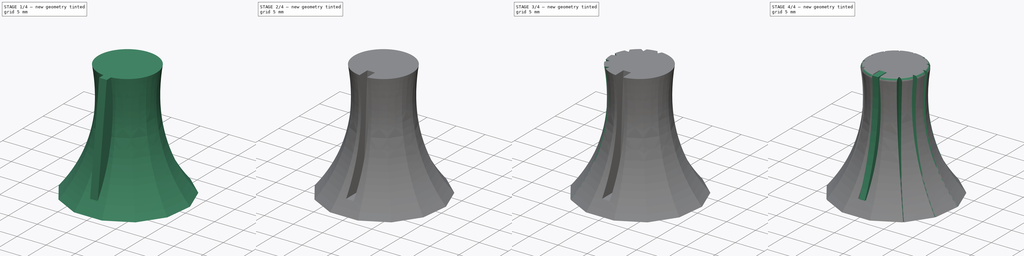
[diagram: build sequence overview — one tinted view per stage of 4, left to right]
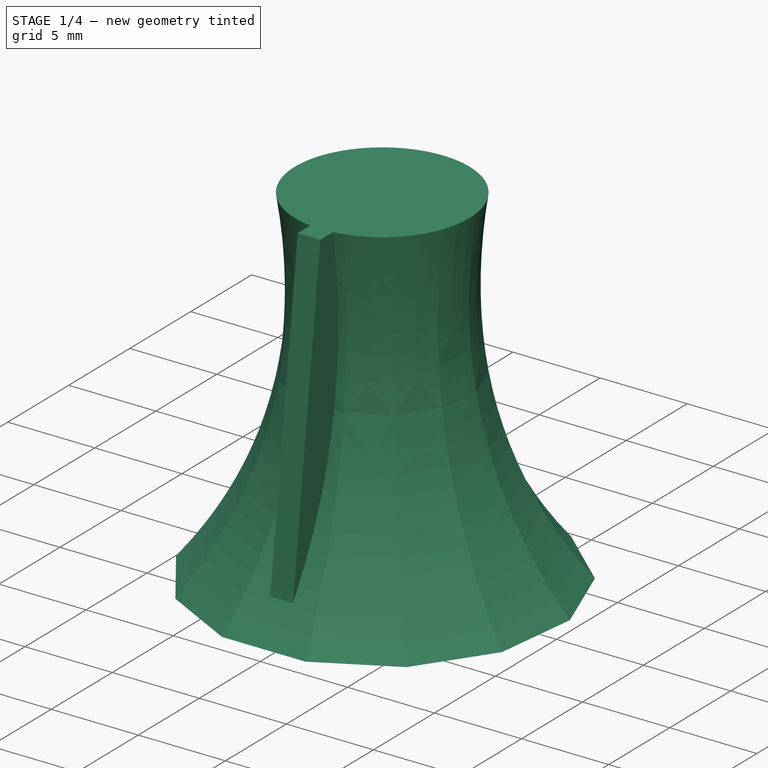
[diagram: stage 1 of 4 — iso view after this stage's code; geometry added in this stage tinted green]
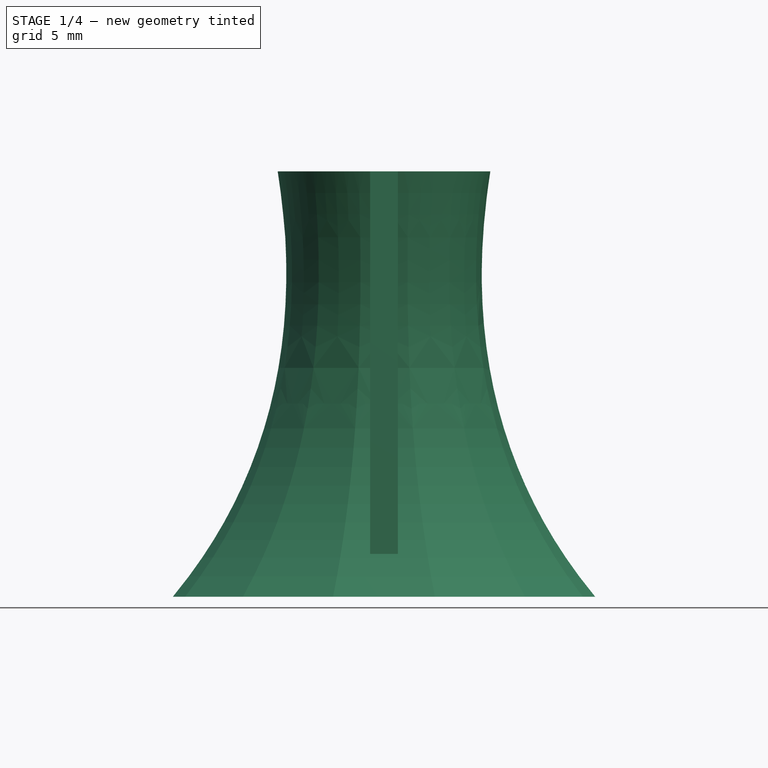
[diagram: stage 1 of 4 — front view after this stage's code; geometry added in this stage tinted green]
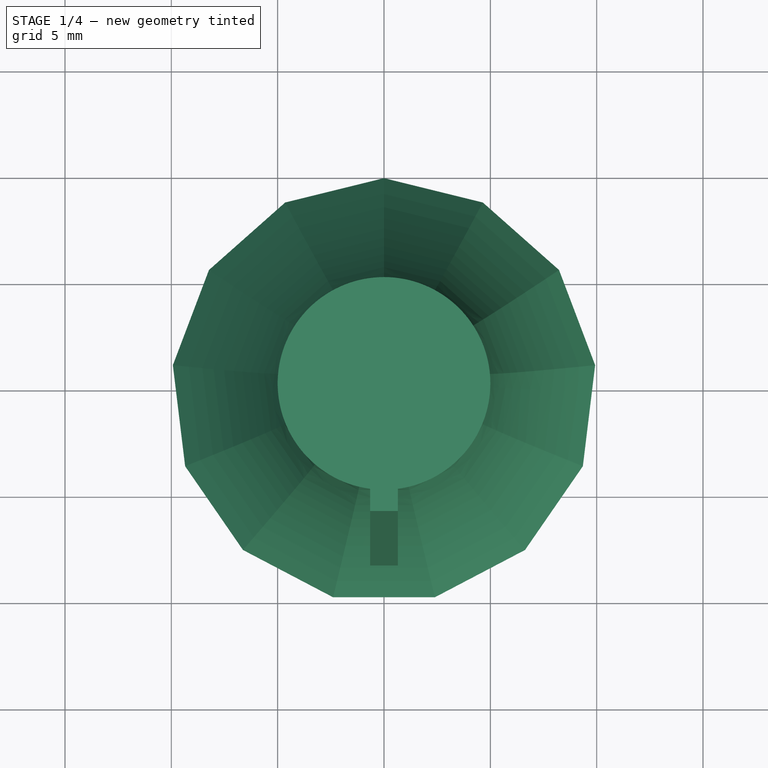
[diagram: stage 1 of 4 — top view after this stage's code; geometry added in this stage tinted green]
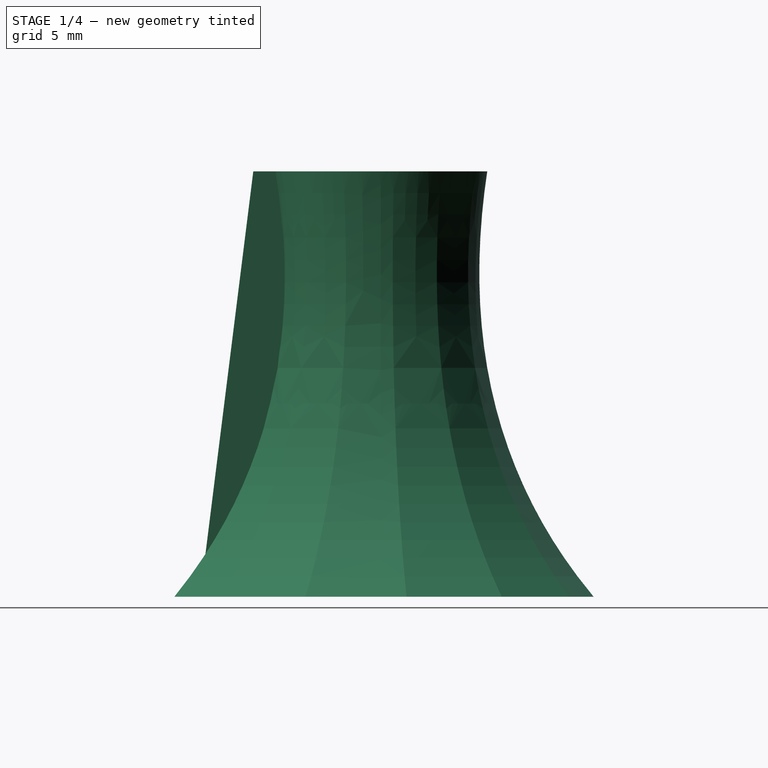
[diagram: stage 1 of 4 — right view after this stage's code; geometry added in this stage tinted green]
FCSTD DOCUMENT  (FreeCAD 0.19R24276 (Git))
Label: 2 part curved 13
License: All rights reserved
LicenseURL: http://en.wikipedia.org/wiki/All_rights_reserved
objects: Sketcher::SketchObject×11, PartDesign::Plane×3, PartDesign::Pad×3, PartDesign::PolarPattern×3, PartDesign::Body×3, PartDesign::AdditiveLoft×1, PartDesign::Pocket×1, PartDesign::Boolean×1, PartDesign::SubtractiveLoft×1, PartDesign::Groove×1
note: 35 computed .brp shape members not serialized (recipe doc carries the construction recipe); baked Part::Feature solids carry a one-line shape summary decoded from their .brp

FEATURE [Sketcher::SketchObject] Sketch
  FullyConstrained = true
  MapMode = 5
  Support = -> [XY_Plane]
  sketch-geometry (15):
    g0: Circle CenterX=0 CenterY=0 CenterZ=0 NormalX=0 NormalY=0 NormalZ=1 AngleXU=0 Radius=10
    g1: LineSegment StartX=0 StartY=10 StartZ=0 EndX=-4.64723 EndY=8.85456 EndZ=0
    g2: LineSegment StartX=-4.64723 StartY=8.85456 StartZ=0 EndX=-8.22984 EndY=5.68065 EndZ=0
    g3: LineSegment StartX=-8.22984 StartY=5.68065 StartZ=0 EndX=-9.92709 EndY=1.20537 EndZ=0
    g4: LineSegment StartX=-9.92709 StartY=1.20537 StartZ=0 EndX=-9.35016 EndY=-3.54605 EndZ=0
    g5: LineSegment StartX=-9.35016 StartY=-3.54605 StartZ=0 EndX=-6.63123 EndY=-7.48511 EndZ=0
    g6: LineSegment StartX=-6.63123 StartY=-7.48511 StartZ=0 EndX=-2.39316 EndY=-9.70942 EndZ=0
    g7: LineSegment StartX=-2.39316 StartY=-9.70942 StartZ=0 EndX=2.39316 EndY=-9.70942 EndZ=0
    g8: LineSegment StartX=2.39316 StartY=-9.70942 StartZ=0 EndX=6.63123 EndY=-7.48511 EndZ=0
    g9: LineSegment StartX=6.63123 StartY=-7.48511 StartZ=0 EndX=9.35016 EndY=-3.54605 EndZ=0
    g10: LineSegment StartX=9.35016 StartY=-3.54605 StartZ=0 EndX=9.92709 EndY=1.20537 EndZ=0
    g11: LineSegment StartX=9.92709 StartY=1.20537 StartZ=0 EndX=8.22984 EndY=5.68065 EndZ=0
    g12: LineSegment StartX=8.22984 StartY=5.68065 StartZ=0 EndX=4.64723 EndY=8.85456 EndZ=0
    g13: LineSegment StartX=4.64723 StartY=8.85456 StartZ=0 EndX=0 EndY=10 EndZ=0
    g14: Circle CenterX=0 CenterY=0 CenterZ=0 NormalX=0 NormalY=0 NormalZ=1 AngleXU=0 Radius=10
  constraints (32):
    c: Coincident(g0,g-1)
    c: Diameter(g0) = 20
    c: Coincident(g1,g2)
    c: Coincident(g2,g3)
    c: Coincident(g3,g4)
    c: Coincident(g4,g5)
    c: Coincident(g5,g6)
    c: Coincident(g6,g7)
    c: Coincident(g7,g8)
    c: Coincident(g8,g9)
    c: Coincident(g9,g10)
    c: Coincident(g10,g11)
    c: Coincident(g11,g12)
    c: Coincident(g12,g13)
    c: Coincident(g13,g1)
    c: Equal(g1, g2-g13) x12
    c: PointOnObject(g1,g14)
    c: PointOnObject(g2,g14)
    c: PointOnObject(g3,g14)
    c: PointOnObject(g4,g14)
    c: PointOnObject(g5,g14)
    c: PointOnObject(g6,g14)
    c: PointOnObject(g7,g14)
    c: PointOnObject(g8,g14)
    c: PointOnObject(g9,g14)
    c: PointOnObject(g10,g14)
    c: PointOnObject(g11,g14)
    c: PointOnObject(g12,g14)
    c: PointOnObject(g13,g14)
    c: Coincident(g14,g0)
    c: PointOnObject(g13,g0)
    c: PointOnObject(g1,g-2)
FEATURE [PartDesign::Plane] DatumPlane
  AttachmentOffset = pos=(0,0,2) rot=(0,0,1;0rad)
  Length = 60
  MapMode = 5
  Placement = pos=(0,0,2) rot=(0,0,1;0rad)
  ResizeMode = 0
  Support = -> [XY_Plane]
  Width = 60
FEATURE [Sketcher::SketchObject] Sketch001
  FullyConstrained = true
  MapMode = 5
  Placement = pos=(0,0,2) rot=(0,0,1;0rad)
  Support = -> [DatumPlane]
  sketch-geometry (15):
    g0: Circle CenterX=0 CenterY=0 CenterZ=0 NormalX=0 NormalY=0 NormalZ=1 AngleXU=0 Radius=8.5
    g1: LineSegment StartX=0 StartY=8.5 StartZ=0 EndX=-3.95015 EndY=7.52638 EndZ=0
    g2: LineSegment StartX=-3.95015 StartY=7.52638 StartZ=0 EndX=-6.99536 EndY=4.82855 EndZ=0
    g3: LineSegment StartX=-6.99536 StartY=4.82855 StartZ=0 EndX=-8.43803 EndY=1.02456 EndZ=0
    g4: LineSegment StartX=-8.43803 StartY=1.02456 StartZ=0 EndX=-7.94764 EndY=-3.01414 EndZ=0
    g5: LineSegment StartX=-7.94764 StartY=-3.01414 StartZ=0 EndX=-5.63654 EndY=-6.36234 EndZ=0
    g6: LineSegment StartX=-5.63654 StartY=-6.36234 StartZ=0 EndX=-2.03418 EndY=-8.25301 EndZ=0
    g7: LineSegment StartX=-2.03418 StartY=-8.25301 StartZ=0 EndX=2.03418 EndY=-8.25301 EndZ=0
    g8: LineSegment StartX=2.03418 StartY=-8.25301 StartZ=0 EndX=5.63654 EndY=-6.36234 EndZ=0
    g9: LineSegment StartX=5.63654 StartY=-6.36234 StartZ=0 EndX=7.94764 EndY=-3.01414 EndZ=0
    g10: LineSegment StartX=7.94764 StartY=-3.01414 StartZ=0 EndX=8.43803 EndY=1.02456 EndZ=0
    g11: LineSegment StartX=8.43803 StartY=1.02456 StartZ=0 EndX=6.99536 EndY=4.82855 EndZ=0
    g12: LineSegment StartX=6.99536 StartY=4.82855 StartZ=0 EndX=3.95015 EndY=7.52638 EndZ=0
    g13: LineSegment StartX=3.95015 StartY=7.52638 StartZ=0 EndX=0 EndY=8.5 EndZ=0
    g14: Circle CenterX=0 CenterY=0 CenterZ=0 NormalX=0 NormalY=0 NormalZ=1 AngleXU=0 Radius=8.5
  constraints (32):
    c: Coincident(g0,g-1)
    c: Diameter(g0) = 17
    c: Coincident(g1,g2)
    c: Coincident(g2,g3)
    c: Coincident(g3,g4)
    c: Coincident(g4,g5)
    c: Coincident(g5,g6)
    c: Coincident(g6,g7)
    c: Coincident(g7,g8)
    c: Coincident(g8,g9)
    c: Coincident(g9,g10)
    c: Coincident(g10,g11)
    c: Coincident(g11,g12)
    c: Coincident(g12,g13)
    c: Coincident(g13,g1)
    c: Equal(g1, g2-g13) x12
    c: PointOnObject(g1,g14)
    c: PointOnObject(g2,g14)
    c: PointOnObject(g3,g14)
    c: PointOnObject(g4,g14)
    c: PointOnObject(g5,g14)
    c: PointOnObject(g6,g14)
    c: PointOnObject(g7,g14)
    c: PointOnObject(g8,g14)
    c: PointOnObject(g9,g14)
    c: PointOnObject(g10,g14)
    c: PointOnObject(g11,g14)
    c: PointOnObject(g12,g14)
    c: PointOnObject(g13,g14)
    c: Coincident(g14,g-1)
    c: PointOnObject(g13,g0)
    c: PointOnObject(g1,g-2)
FEATURE [PartDesign::Plane] DatumPlane001
  AttachmentOffset = pos=(0,0,20) rot=(0,0,1;0rad)
  Length = 60
  MapMode = 5
  Placement = pos=(0,0,20) rot=(0,0,1;0rad)
  ResizeMode = 0
  Support = -> [XY_Plane]
  Width = 60
FEATURE [Sketcher::SketchObject] Sketch002
  FullyConstrained = true
  MapMode = 5
  Placement = pos=(0,0,20) rot=(0,0,1;0rad)
  Support = -> [DatumPlane001]
  sketch-geometry (1):
    g0: Circle CenterX=0 CenterY=0 CenterZ=0 NormalX=0 NormalY=0 NormalZ=1 AngleXU=0 Radius=5
  constraints (2):
    c: Coincident(g0,g-1)
    c: Diameter(g0) = 10
FEATURE [PartDesign::AdditiveLoft] AdditiveLoft
  Closed = false
  Profile = -> Sketch
  Ruled = false
  Sections = -> [Sketch001,Sketch002]
FEATURE [Sketcher::SketchObject] Sketch003
  FullyConstrained = true
  MapMode = 5
  Support = -> [XY_Plane]
  sketch-geometry (1):
    g0: Circle CenterX=0 CenterY=0 CenterZ=0 NormalX=0 NormalY=0 NormalZ=1 AngleXU=0 Radius=3.15
  constraints (2):
    c: Coincident(g0,g-1)
    c: Diameter(g0) = 6.3
FEATURE [PartDesign::Pocket] Pocket
  BaseFeature = -> AdditiveLoft
  Length = 10
  Length2 = 100
  Profile = -> Sketch003
  Reversed = true
  Type = 0
FEATURE [PartDesign::Body] Body001  label="pointer"
  Group = -> [Sketch005,Pad001]
  Origin = -> Origin001
  Tip = -> Pad001
FEATURE [Sketcher::SketchObject] Sketch006
  FullyConstrained = true
  MapMode = 5
  Placement = pos=(0,0,0) rot=(0.57735,0.57735,0.57735;2.0944rad)
  Support = -> [YZ_Plane002]
  sketch-geometry (4):
    g0: LineSegment StartX=-3 StartY=20 StartZ=0 EndX=-6 EndY=20 EndZ=0
    g1: LineSegment StartX=-6 StartY=20 StartZ=0 EndX=-8.25 EndY=2 EndZ=0
    g2: LineSegment StartX=-8.25 StartY=2 StartZ=0 EndX=-4 EndY=2 EndZ=0
    g3: LineSegment StartX=-4 StartY=2 StartZ=0 EndX=-3 EndY=20 EndZ=0
  constraints (12):
    c: Horizontal(g0)
    c: Coincident(g0,g1)
    c: Coincident(g1,g2)
    c: Horizontal(g2)
    c: Coincident(g2,g3)
    c: Coincident(g3,g0)
    c: DistanceY(g0) = 20
    c: DistanceX(g0) = -6
    c: DistanceX(g0) = -3
    c: DistanceX(g2) = -4
    c: DistanceY(g2) = 2
    c: DistanceX(g1) = -8.25
FEATURE [PartDesign::Pad] Pad002
  Direction = (1,1,1)
  Length = 1.3
  Length2 = 100
  Midplane = true
  Placement = pos=(0,0,0) rot=(0.57735,0.57735,0.57735;2.0944rad)
  Profile = -> Sketch006
  Type = 0
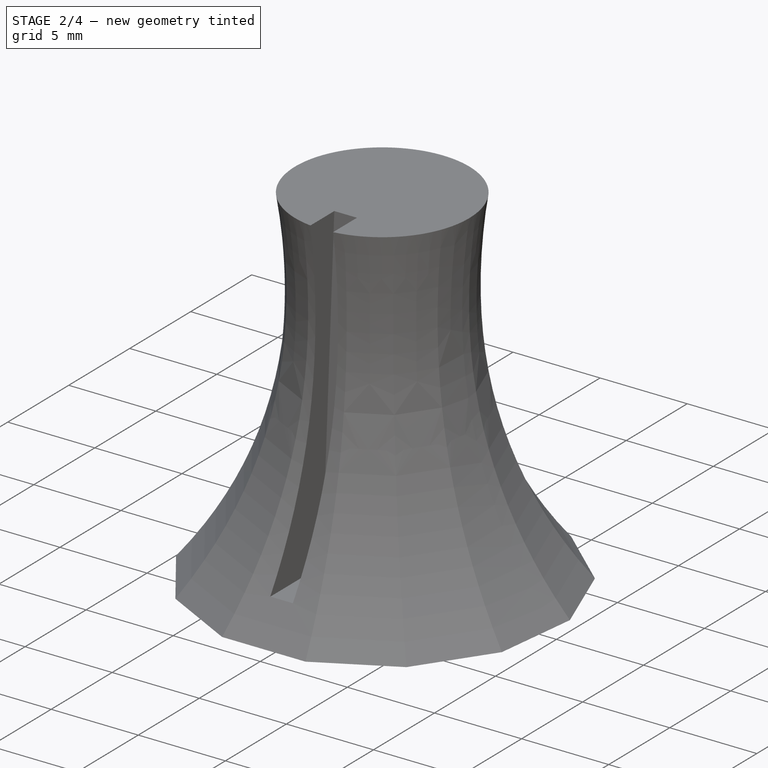
[diagram: stage 2 of 4 — iso view after this stage's code; geometry added in this stage tinted green]
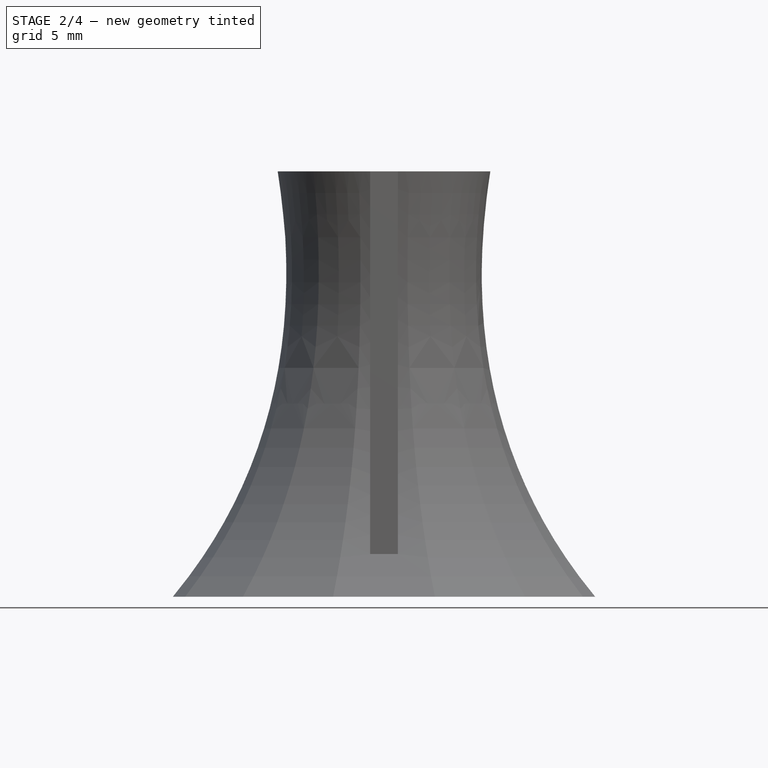
[diagram: stage 2 of 4 — front view after this stage's code; geometry added in this stage tinted green]
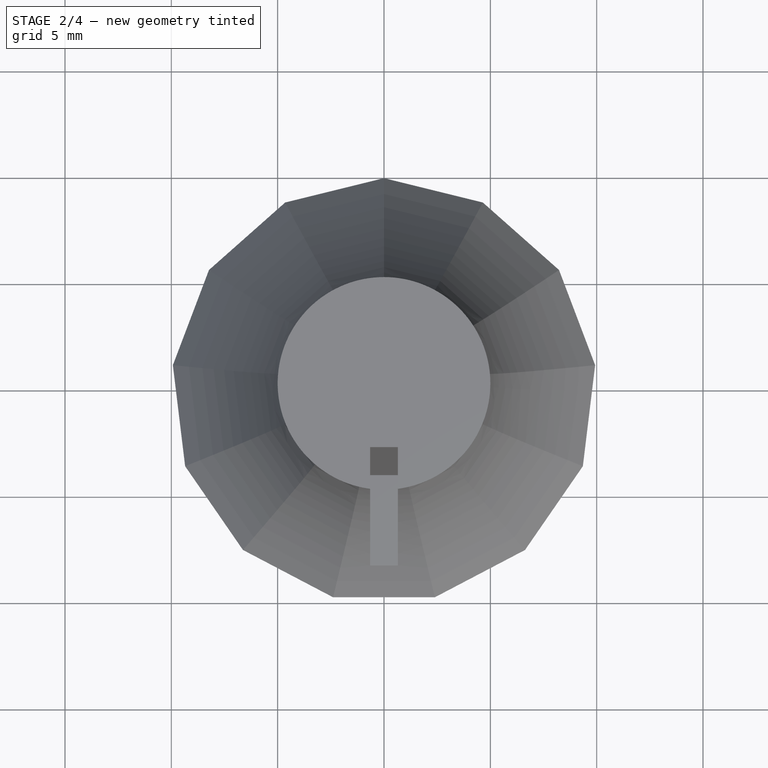
[diagram: stage 2 of 4 — top view after this stage's code; geometry added in this stage tinted green]
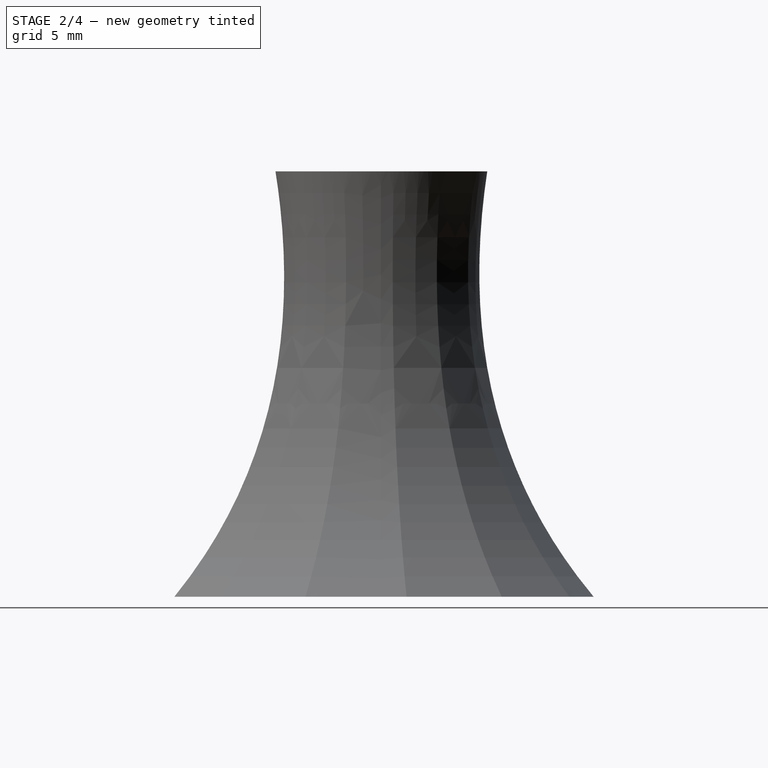
[diagram: stage 2 of 4 — right view after this stage's code; geometry added in this stage tinted green]
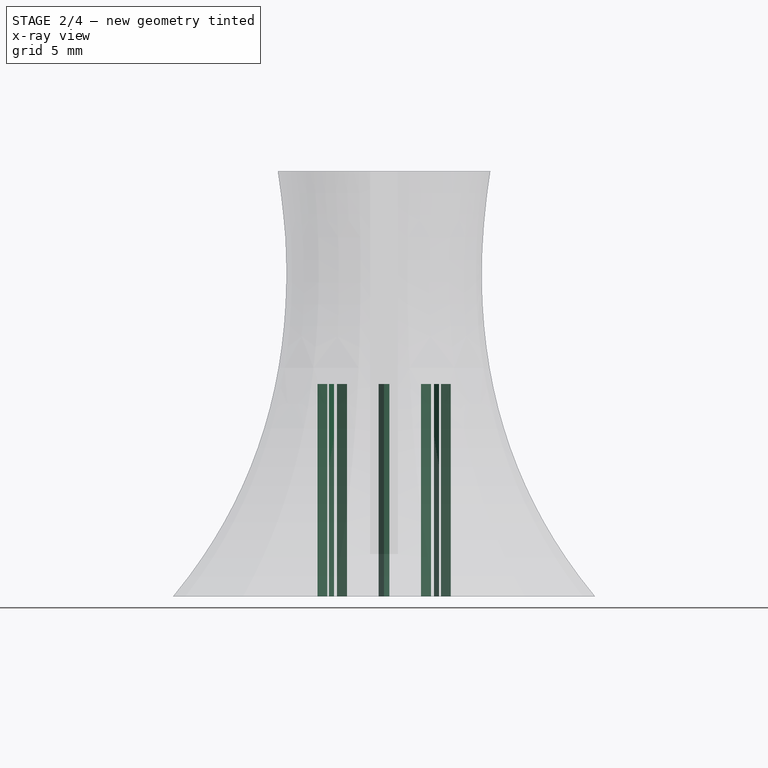
[diagram: stage 2 of 4 — x-ray composite at the front view; earlier geometry ghosted, this stage's added geometry solid]
FEATURE [Sketcher::SketchObject] Sketch004
  FullyConstrained = true
  MapMode = 5
  Support = -> [XY_Plane]
  sketch-geometry (6):
    g0: Circle CenterX=0 CenterY=0 CenterZ=0 NormalX=0 NormalY=0 NormalZ=1 AngleXU=0 Radius=3.15
    g1: LineSegment StartX=-0.25 StartY=3.14006 StartZ=0 EndX=0 EndY=2.70705 EndZ=0
    g2: LineSegment StartX=0 StartY=2.70705 StartZ=0 EndX=0.25 EndY=3.14006 EndZ=0
    g3: LineSegment StartX=0.25 StartY=3.14006 StartZ=0 EndX=0 EndY=3.57308 EndZ=0
    g4: LineSegment StartX=0 StartY=3.57308 StartZ=0 EndX=-0.25 EndY=3.14006 EndZ=0
    g5: LineSegment StartX=-0.25 StartY=3.14006 StartZ=0 EndX=0.25 EndY=3.14006 EndZ=0
  constraints (15):
    c: Coincident(g0,g-1)
    c: Diameter(g0) = 6.3
    c: PointOnObject(g1,g0)
    c: PointOnObject(g1,g-2)
    c: Coincident(g1,g2)
    c: Coincident(g2,g3)
    c: PointOnObject(g3,g-2)
    c: Coincident(g3,g4)
    c: Coincident(g4,g1)
    c: Symmetric(g1,g2,g-2)
    c: Coincident(g5,g1)
    c: Coincident(g5,g2)
    c: Equal(g5,g1)
    c: Equal(g2,g3)
    c: Distance(g2) = 0.5
FEATURE [PartDesign::Pad] Pad
  BaseFeature = -> Pocket
  Direction = (1,1,1)
  Length = 10
  Length2 = 100
  Profile = -> Sketch004
  Type = 0
FEATURE [PartDesign::PolarPattern] PolarPattern
  Angle = 360
  Axis = -> Sketch004 [N_Axis]
  BaseFeature = -> Pad
  Occurrences = 9
  Originals = -> [Pad]
FEATURE [PartDesign::Body] Body002  label="hole"
  Group = -> [Sketch006,Pad002]
  Origin = -> Origin002
  Tip = -> Pad002
FEATURE [PartDesign::Boolean] Boolean
  BaseFeature = -> PolarPattern
  Group = -> [Body002]
  Type = 1
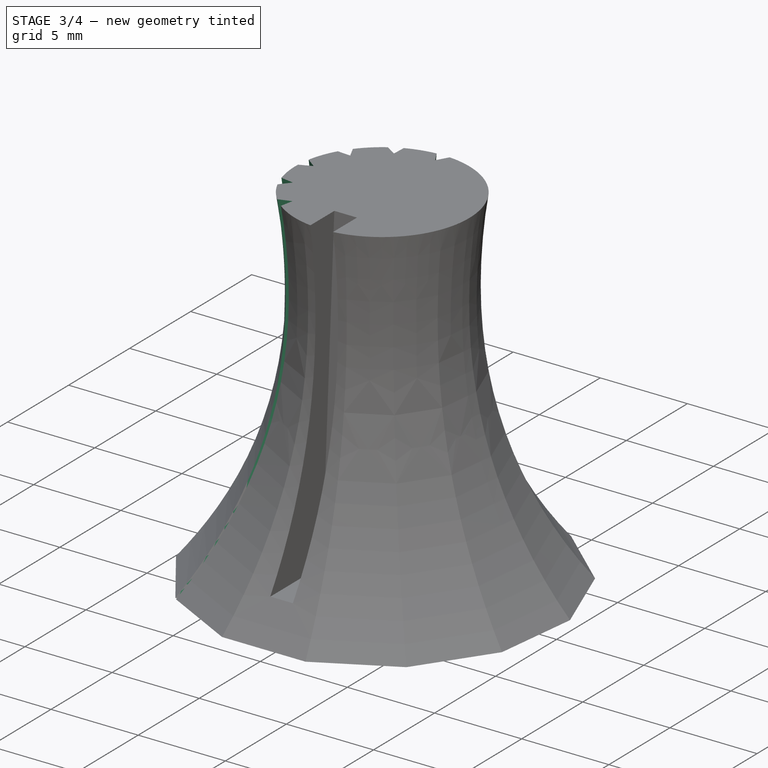
[diagram: stage 3 of 4 — iso view after this stage's code; geometry added in this stage tinted green]
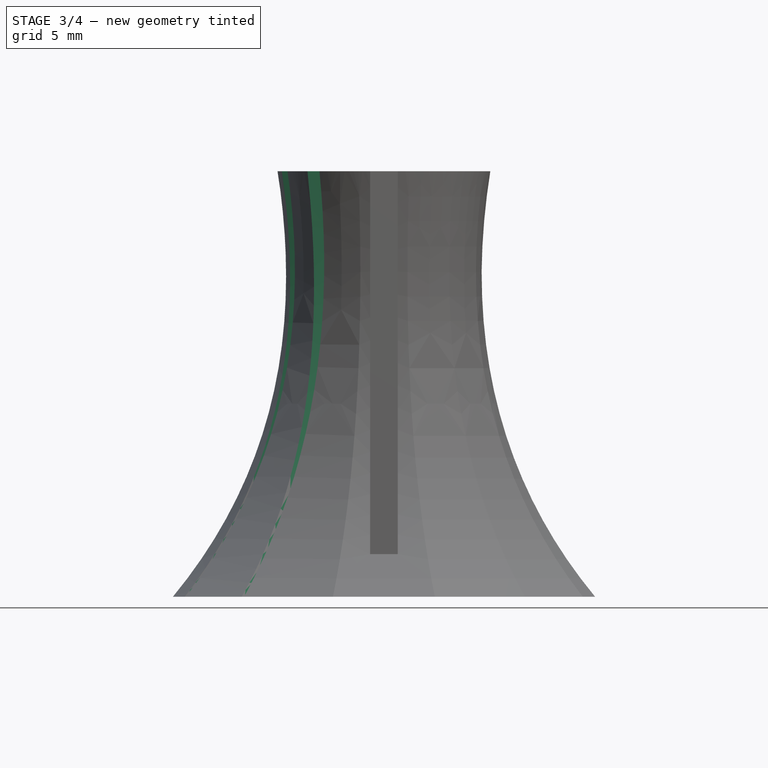
[diagram: stage 3 of 4 — front view after this stage's code; geometry added in this stage tinted green]
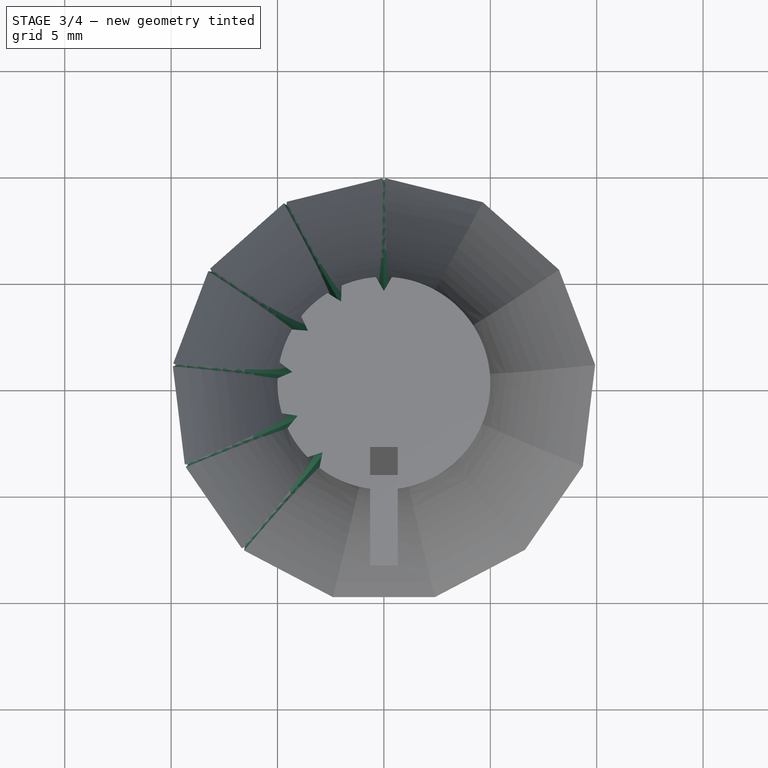
[diagram: stage 3 of 4 — top view after this stage's code; geometry added in this stage tinted green]
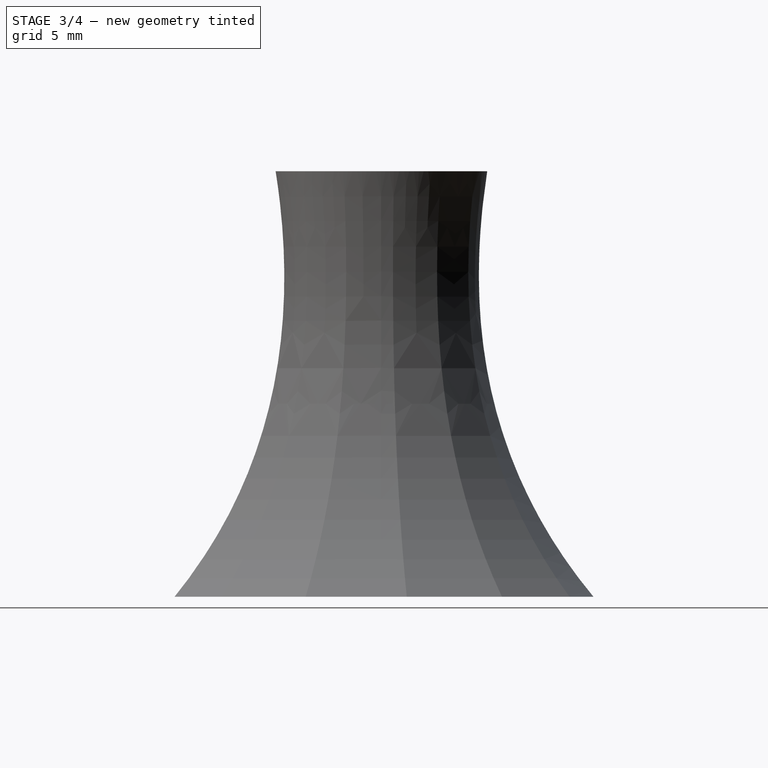
[diagram: stage 3 of 4 — right view after this stage's code; geometry added in this stage tinted green]
FEATURE [Sketcher::SketchObject] Sketch007
  FullyConstrained = true
  MapMode = 5
  Placement = pos=(0,0,20) rot=(0,0,1;0rad)
  Support = -> [DatumPlane001]
  sketch-geometry (7):
    g0: Circle CenterX=0 CenterY=0 CenterZ=0 NormalX=0 NormalY=0 NormalZ=1 AngleXU=0 Radius=5
    g1: LineSegment StartX=-0.375 StartY=4.98592 StartZ=0 EndX=0 EndY=4.3364 EndZ=0
    g2: LineSegment StartX=0 StartY=4.3364 StartZ=0 EndX=0.375 EndY=4.98592 EndZ=0
    g3: LineSegment StartX=0.375 StartY=4.98592 StartZ=0 EndX=0 EndY=5.63544 EndZ=0
    g4: LineSegment StartX=0 StartY=5.63544 StartZ=0 EndX=-0.375 EndY=4.98592 EndZ=0
    g5: LineSegment StartX=0.375 StartY=4.98592 StartZ=0 EndX=-0.375 EndY=4.98592 EndZ=0
    g6: LineSegment StartX=-0.375 StartY=4.98592 StartZ=0 EndX=0.375 EndY=4.98592 EndZ=0
  constraints (17):
    c: Coincident(g0,g-1)
    c: Diameter(g0) = 10
    c: PointOnObject(g1,g0)
    c: PointOnObject(g1,g-2)
    c: Coincident(g1,g2)
    c: Coincident(g2,g3)
    c: PointOnObject(g3,g-2)
    c: Coincident(g3,g4)
    c: Coincident(g4,g1)
    c: Symmetric(g2,g1,g-2)
    c: Coincident(g5,g2)
    c: Coincident(g6,g1)
    c: Coincident(g6,g2)
    c: Equal(g5,g4)
    c: Equal(g3,g2)
    c: Coincident(g5,g1)
    c: Distance(g2) = 0.75
FEATURE [PartDesign::Plane] DatumPlane002
  AttachmentOffset = pos=(0,0,10) rot=(0,0,1;0rad)
  Length = 60
  MapMode = 5
  Placement = pos=(0,0,10) rot=(0,0,1;0rad)
  ResizeMode = 0
  Support = -> [XY_Plane]
  Width = 60
FEATURE [Sketcher::SketchObject] Sketch008
  FullyConstrained = true
  MapMode = 5
  Placement = pos=(0,0,10) rot=(0,0,1;0rad)
  Support = -> [DatumPlane002]
  sketch-geometry (6):
    g0: Circle CenterX=0 CenterY=0 CenterZ=0 NormalX=0 NormalY=0 NormalZ=1 AngleXU=0 Radius=5.4
    g1: LineSegment StartX=-0.375 StartY=5.38696 StartZ=0 EndX=0 EndY=4.73744 EndZ=0
    g2: LineSegment StartX=0 StartY=4.73744 StartZ=0 EndX=0.375 EndY=5.38696 EndZ=0
    g3: LineSegment StartX=0.375 StartY=5.38696 StartZ=0 EndX=-1e-16 EndY=6.03648 EndZ=0
    g4: LineSegment StartX=-1e-16 StartY=6.03648 StartZ=0 EndX=-0.375 EndY=5.38696 EndZ=0
    g5: LineSegment StartX=-0.375 StartY=5.38696 StartZ=0 EndX=0.375 EndY=5.38696 EndZ=0
  constraints (16):
    c: Coincident(g0,g-1)
    c: Diameter(g0) = 10.8
    c: PointOnObject(g1,g0)
    c: PointOnObject(g1,g-2)
    c: Coincident(g1,g2)
    c: PointOnObject(g2,g0)
    c: Coincident(g2,g3)
    c: PointOnObject(g3,g-2)
    c: Coincident(g3,g4)
    c: Coincident(g4,g1)
    c: Coincident(g5,g1)
    c: Coincident(g5,g2)
    c: Horizontal(g5)
    c: Equal(g5,g1)
    c: Equal(g2,g3)
    c: Distance(g2) = 0.75
FEATURE [Sketcher::SketchObject] Sketch009
  FullyConstrained = true
  MapMode = 5
  Support = -> [XY_Plane001]
  sketch-geometry (6):
    g0: Circle CenterX=0 CenterY=0 CenterZ=0 NormalX=0 NormalY=0 NormalZ=1 AngleXU=0 Radius=10.5
    g1: LineSegment StartX=-0.375 StartY=10.4933 StartZ=0 EndX=0 EndY=9.84378 EndZ=0
    g2: LineSegment StartX=0 StartY=9.84378 StartZ=0 EndX=0.375 EndY=10.4933 EndZ=0
    g3: LineSegment StartX=0.375 StartY=10.4933 StartZ=0 EndX=0 EndY=11.1428 EndZ=0
    g4: LineSegment StartX=0 StartY=11.1428 StartZ=0 EndX=-0.375 EndY=10.4933 EndZ=0
    g5: LineSegment StartX=-0.375 StartY=10.4933 StartZ=0 EndX=0.375 EndY=10.4933 EndZ=0
  constraints (16):
    c: Coincident(g0,g-1)
    c: Diameter(g0) = 21
    c: PointOnObject(g1,g0)
    c: PointOnObject(g1,g-2)
    c: Coincident(g1,g2)
    c: PointOnObject(g2,g0)
    c: Coincident(g2,g3)
    c: PointOnObject(g3,g-2)
    c: Coincident(g3,g4)
    c: Coincident(g4,g1)
    c: Horizontal(g5)
    c: Coincident(g5,g1)
    c: Coincident(g5,g2)
    c: Equal(g5,g4)
    c: Equal(g3,g2)
    c: Distance(g2) = 0.75
FEATURE [PartDesign::SubtractiveLoft] SubtractiveLoft
  BaseFeature = -> Boolean
  Closed = false
  Profile = -> Sketch007
  Ruled = false
  Sections = -> [Sketch008,Sketch009]
FEATURE [PartDesign::PolarPattern] PolarPattern001
  Angle = 138.4
  Axis = -> Sketch007 [N_Axis]
  BaseFeature = -> SubtractiveLoft
  Occurrences = 6
  Originals = -> [SubtractiveLoft]
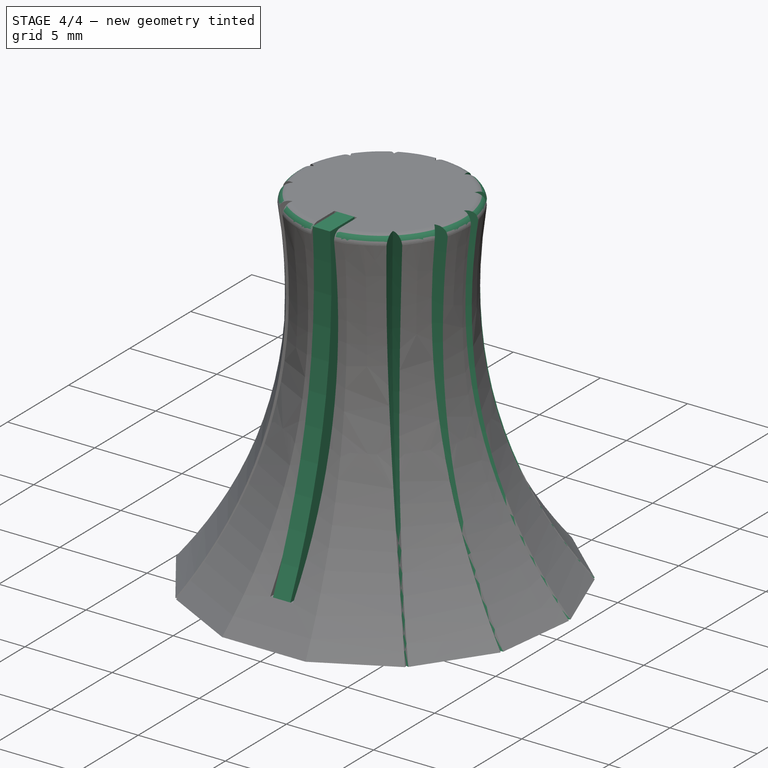
[diagram: stage 4 of 4 — iso view after this stage's code; geometry added in this stage tinted green]
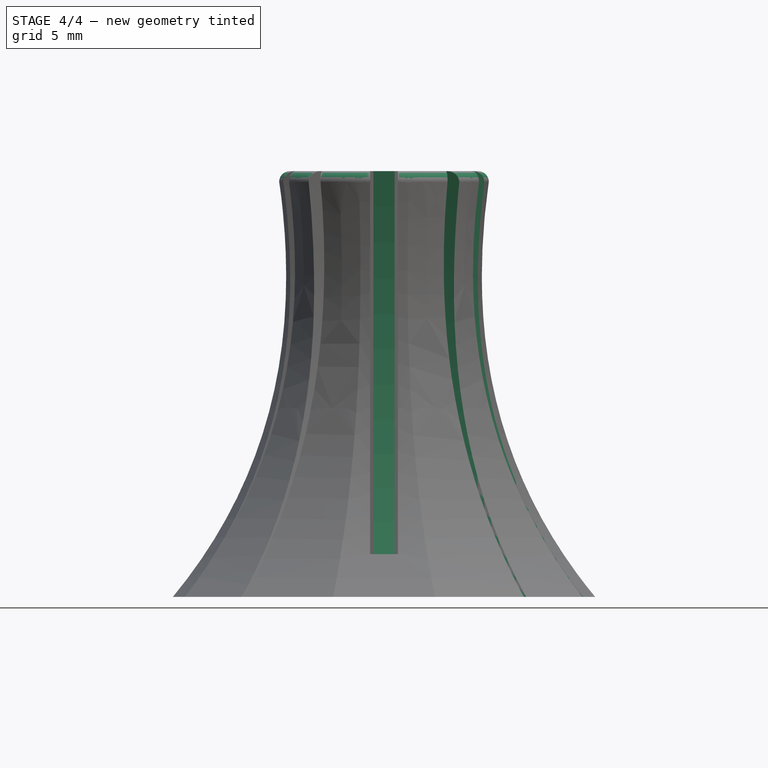
[diagram: stage 4 of 4 — front view after this stage's code; geometry added in this stage tinted green]
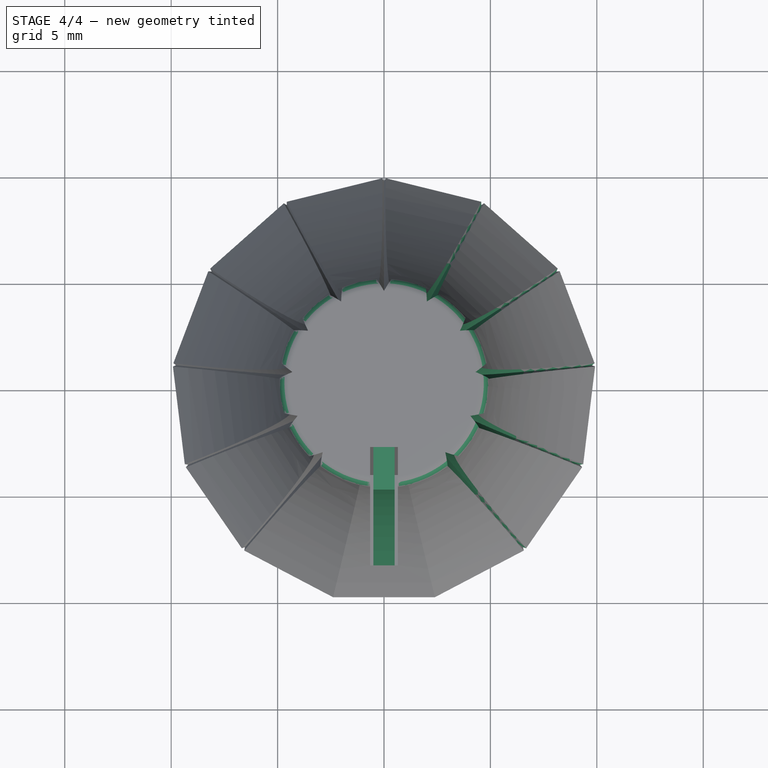
[diagram: stage 4 of 4 — top view after this stage's code; geometry added in this stage tinted green]
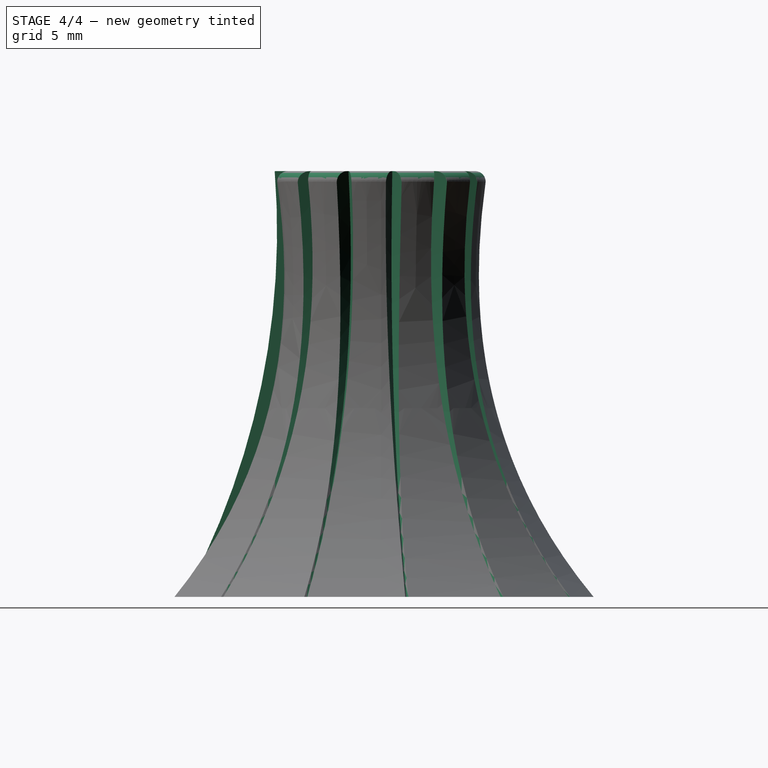
[diagram: stage 4 of 4 — right view after this stage's code; geometry added in this stage tinted green]
FEATURE [Sketcher::SketchObject] Sketch005
  FullyConstrained = false
  MapMode = 5
  Placement = pos=(0,0,0) rot=(0.57735,0.57735,0.57735;2.0944rad)
  Support = -> [YZ_Plane001]
  sketch-geometry (4):
    g0: LineSegment StartX=-3 StartY=20 StartZ=0 EndX=-5 EndY=20 EndZ=0
    g1: LineSegment StartX=-8.25 StartY=2 StartZ=0 EndX=-4 EndY=2 EndZ=0
    g2: LineSegment StartX=-4 StartY=2 StartZ=0 EndX=-3 EndY=20 EndZ=0
    g3: ArcOfCircle CenterX=-40.8691 CenterY=17.183 CenterZ=0 NormalX=0 NormalY=0 NormalZ=1 AngleXU=0 Radius=35.9796 StartAngle=5.84755 EndAngle=6.36156
  constraints (12):
    c: Horizontal(g0)
    c: Horizontal(g1)
    c: Coincident(g1,g2)
    c: Coincident(g2,g0)
    c: DistanceY(g0) = 20
    c: DistanceX(g0) = -5
    c: DistanceX(g0) = -3
    c: DistanceX(g1) = -4
    c: DistanceY(g1) = 2
    c: DistanceX(g1) = -8.25
    c: Coincident(g3,g0)
    c: Coincident(g3,g1)
FEATURE [PartDesign::Pad] Pad001
  Direction = (1,1,1)
  Length = 1
  Length2 = 100
  Midplane = true
  Placement = pos=(0,0,0) rot=(0.57735,0.57735,0.57735;2.0944rad)
  Profile = -> Sketch005
  Type = 0
FEATURE [PartDesign::PolarPattern] PolarPattern002
  Angle = 138.4
  Axis = -> Sketch007 [N_Axis]
  BaseFeature = -> PolarPattern001
  Occurrences = 6
  Originals = -> [SubtractiveLoft]
  Reversed = true
FEATURE [Sketcher::SketchObject] Sketch010
  FullyConstrained = false
  MapMode = 5
  Placement = pos=(0,0,0) rot=(1,0,0;1.5708rad)
  Support = -> [XZ_Plane]
  sketch-geometry (8):
    g0: LineSegment StartX=0 StartY=21.3449 StartZ=0 EndX=0 EndY=20 EndZ=0
    g1: LineSegment StartX=0 StartY=20 StartZ=0 EndX=-4.42551 EndY=20 EndZ=0
    g2: LineSegment StartX=-4.92073 StartY=19.431 StartZ=0 EndX=-4.91577 EndY=19.3954 EndZ=0
    g3: LineSegment StartX=-4.91577 StartY=19.3954 StartZ=0 EndX=-6.56971 EndY=19.3954 EndZ=0
    g4: LineSegment StartX=-6.56971 StartY=19.3954 StartZ=0 EndX=-6.56971 EndY=21.0163 EndZ=0
    g5: LineSegment StartX=-6.56971 StartY=21.0163 StartZ=0 EndX=0 EndY=21.3449 EndZ=0
    g6: ArcOfCircle CenterX=-4.42551 CenterY=19.5 CenterZ=0 NormalX=0 NormalY=0 NormalZ=1 AngleXU=0 Radius=0.5 StartAngle=1.5708 EndAngle=3.28003
    g7: GeomPoint X=-5 Y=20 Z=0
  constraints (18):
    c: PointOnObject(g0,g-2)
    c: Vertical(g0)
    c: Coincident(g0,g1)
    c: Horizontal(g1)
    c: Coincident(g2,g3)
    c: Horizontal(g3)
    c: Coincident(g3,g4)
    c: Vertical(g4)
    c: Coincident(g4,g5)
    c: Coincident(g5,g0)
    c: DistanceY(g0) = 20
    c: DistanceX(g7) = -5
    c: PointOnObject(g7,g1)
    c: PointOnObject(g7,g2)
    c: Tangent(g1,g6) = -1.5708
    c: Tangent(g2,g6) = -1.5708
    c: Radius(g6) = 0.5
    c: DistanceX(g2) = -4.92073
FEATURE [PartDesign::Groove] Groove
  Angle = 360
  Axis = (0,-2e-16,1)
  Base = (0,0,0)
  BaseFeature = -> PolarPattern002
  Profile = -> Sketch010
  ReferenceAxis = -> Sketch010 [V_Axis]
  Reversed = true
FEATURE [PartDesign::Body] Body  label="knob"
  Group = -> [Sketch,DatumPlane,Sketch001,DatumPlane001,DatumPlane002,Sketch002,AdditiveLoft,Sketch003,Pocket,Sketch004,Pad,PolarPattern,Boolean,Sketch007,Sketch008,SubtractiveLoft,Sketch009,PolarPattern001,PolarPattern002,Sketch010,Groove]
  Origin = -> Origin
  Tip = -> Groove
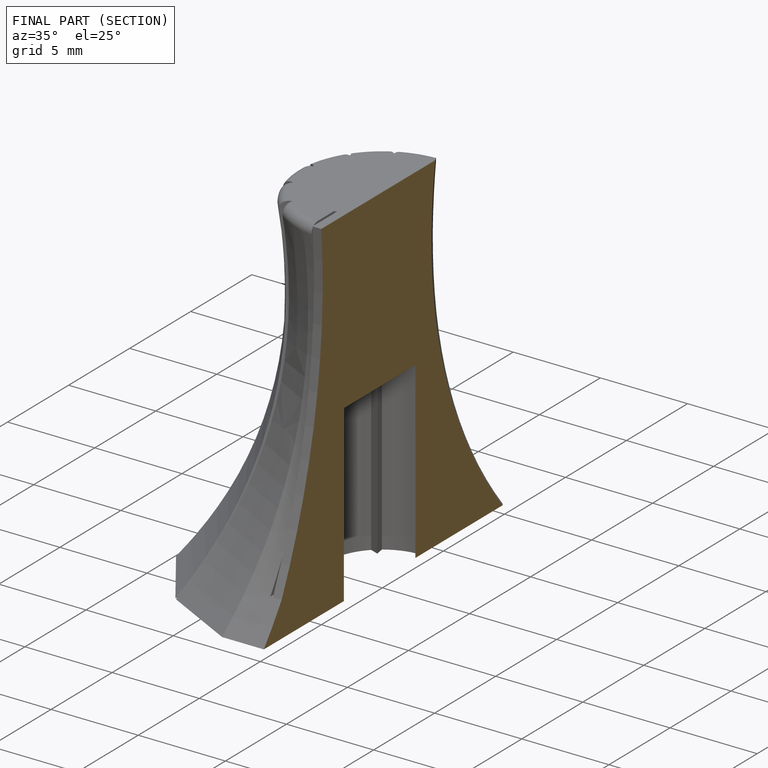
[diagram: finished part — half-section view (interior)]
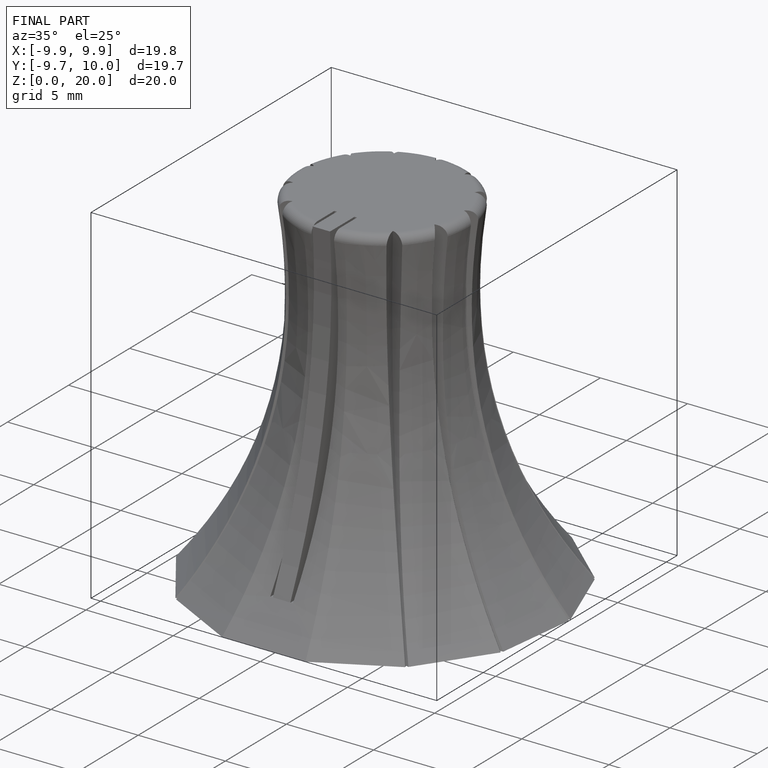
[diagram: finished part — iso view with bounding-box wireframe]
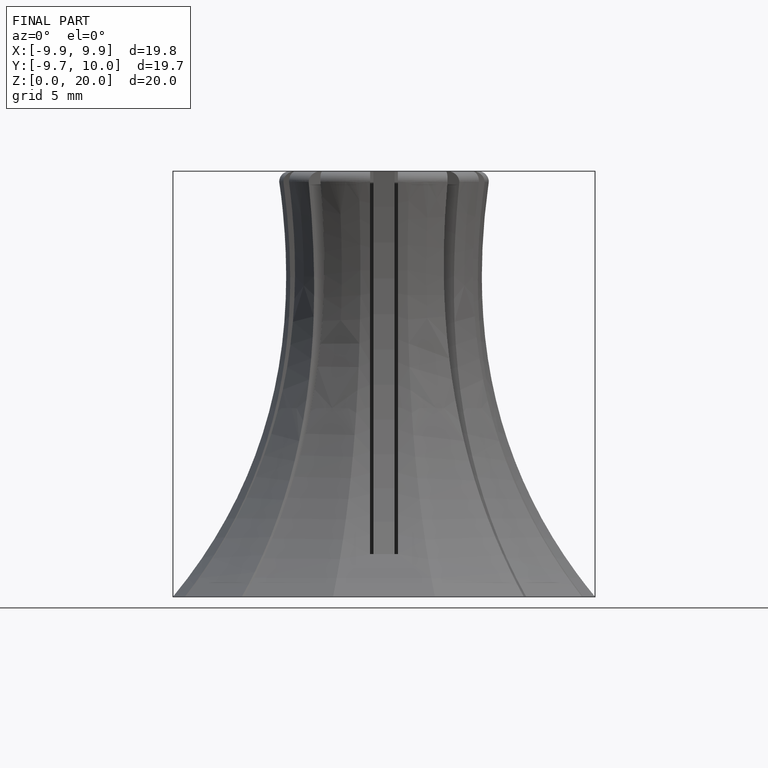
[diagram: finished part — front view with bounding-box wireframe]
